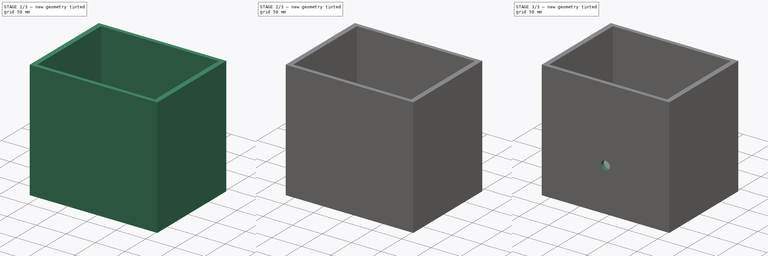
[diagram: build sequence overview — one tinted view per stage of 3, left to right]
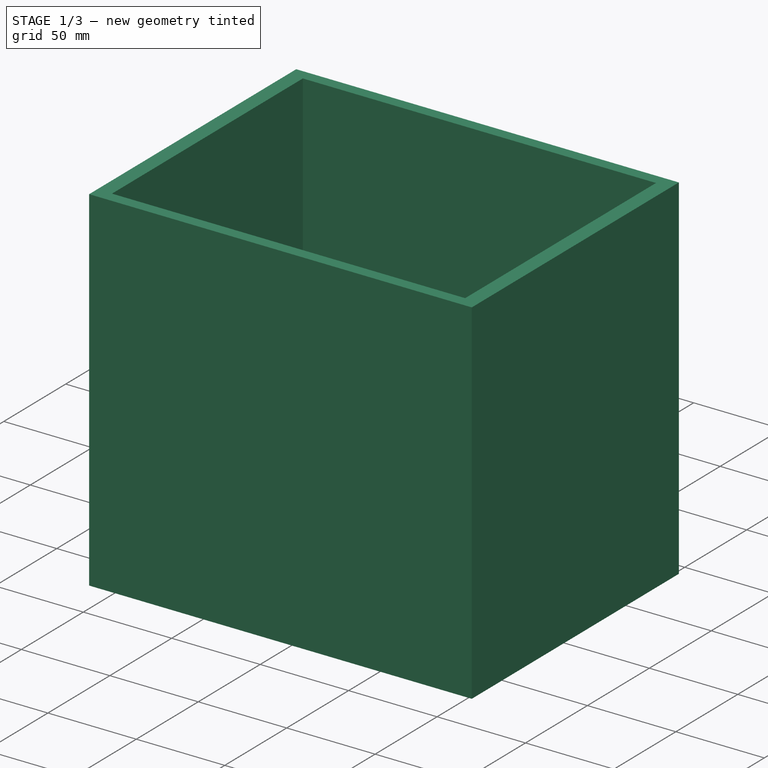
[diagram: stage 1 of 3 — iso view after this stage's code; geometry added in this stage tinted green]
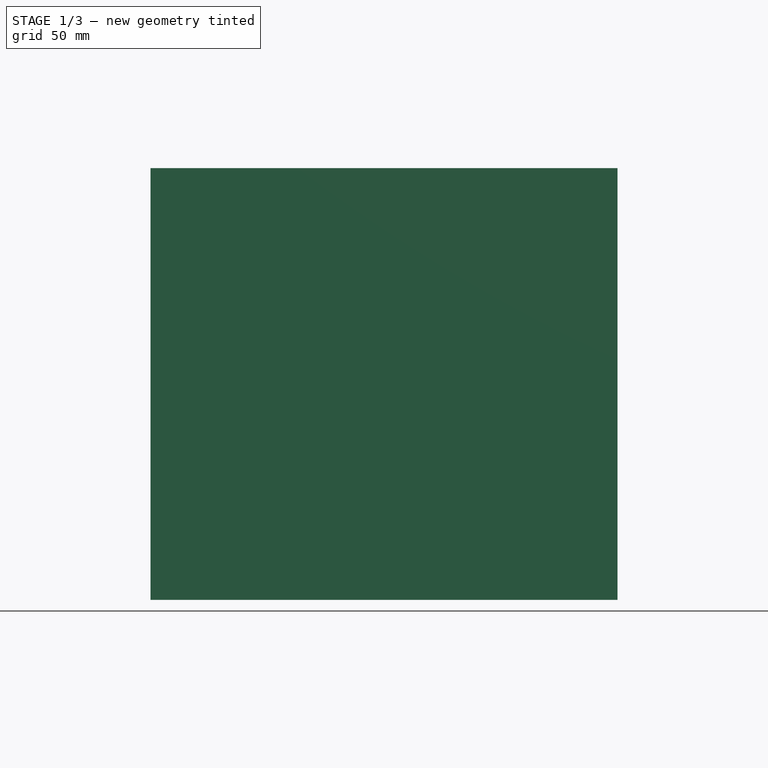
[diagram: stage 1 of 3 — front view after this stage's code; geometry added in this stage tinted green]
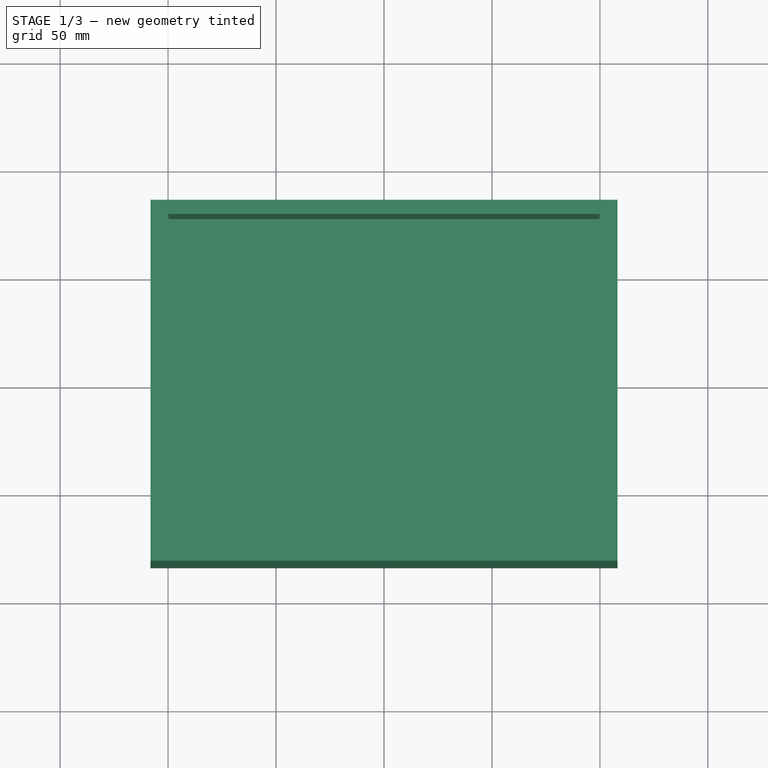
[diagram: stage 1 of 3 — top view after this stage's code; geometry added in this stage tinted green]
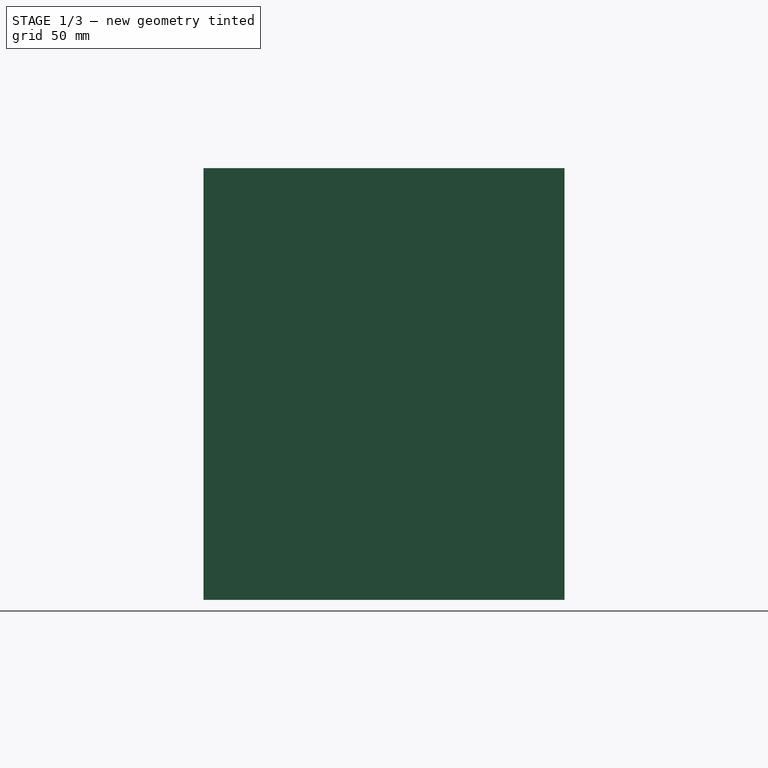
[diagram: stage 1 of 3 — right view after this stage's code; geometry added in this stage tinted green]
FCSTD DOCUMENT  (FreeCAD 0.21R33771 (Git))
Label: big_magnet_box
License: All rights reserved
LicenseURL: https://en.wikipedia.org/wiki/All_rights_reserved
objects: Sketcher::SketchObject×5, PartDesign::Pocket×3, PartDesign::Pad×1, PartDesign::Hole×1, PartDesign::Body×1
note: 16 computed .brp shape members not serialized (recipe doc carries the construction recipe); baked Part::Feature solids carry a one-line shape summary decoded from their .brp

FEATURE [Sketcher::SketchObject] Sketch
  FullyConstrained = true
  MapMode = 5
  Support = -> [XY_Plane]
  sketch-geometry (4):
    g0: LineSegment StartX=-108.16 StartY=83.59 StartZ=0 EndX=108.16 EndY=83.59 EndZ=0
    g1: LineSegment StartX=108.16 StartY=83.59 StartZ=0 EndX=108.16 EndY=-83.59 EndZ=0
    g2: LineSegment StartX=108.16 StartY=-83.59 StartZ=0 EndX=-108.16 EndY=-83.59 EndZ=0
    g3: LineSegment StartX=-108.16 StartY=-83.59 StartZ=0 EndX=-108.16 EndY=83.59 EndZ=0
  constraints (12):
    c: Coincident(g0,g1)
    c: Coincident(g1,g2)
    c: Coincident(g2,g3)
    c: Coincident(g3,g0)
    c: Horizontal(g0)
    c: Horizontal(g2)
    c: Vertical(g1)
    c: Vertical(g3)
    c: DistanceX(g0,g0) = 216.32
    c: DistanceY(g3,g3) = 167.18
    c: Distance(g-1,g0) = 83.59
    c: Distance(g-1,g1) = 108.16
FEATURE [PartDesign::Pad] Pad
  Direction = (0,0,1)
  Length = 200
  Length2 = 10
  Profile = -> Sketch
  ReferenceAxis = -> Sketch [N_Axis]
  Type = 0
FEATURE [Sketcher::SketchObject] Sketch001
  ExternalGeometry = -> [Pad]
  FullyConstrained = true
  MapMode = 5
  Placement = pos=(0,0,200) rot=(0,0,1;0rad)
  Support = -> [Pad]
  sketch-geometry (4):
    g0: LineSegment StartX=-99.84 StartY=77.04 StartZ=0 EndX=99.84 EndY=77.04 EndZ=0
    g1: LineSegment StartX=99.84 StartY=77.04 StartZ=0 EndX=99.84 EndY=-77.04 EndZ=0
    g2: LineSegment StartX=99.84 StartY=-77.04 StartZ=0 EndX=-99.84 EndY=-77.04 EndZ=0
    g3: LineSegment StartX=-99.84 StartY=-77.04 StartZ=0 EndX=-99.84 EndY=77.04 EndZ=0
  constraints (12):
    c: Coincident(g0,g1)
    c: Coincident(g1,g2)
    c: Coincident(g2,g3)
    c: Coincident(g3,g0)
    c: Horizontal(g0)
    c: Horizontal(g2)
    c: Vertical(g1)
    c: Vertical(g3)
    c: DistanceX(g0,g0) = 199.68
    c: DistanceY(g3,g3) = 154.08
    c: Distance(g-1,g0) = 77.04
    c: Distance(g-1,g3) = 99.84
FEATURE [PartDesign::Pocket] Pocket
  BaseFeature = -> Pad
  Direction = (0,0,-1)
  Length = 140
  Length2 = 5
  Profile = -> Sketch001
  ReferenceAxis = -> Sketch001 [N_Axis]
  Type = 0
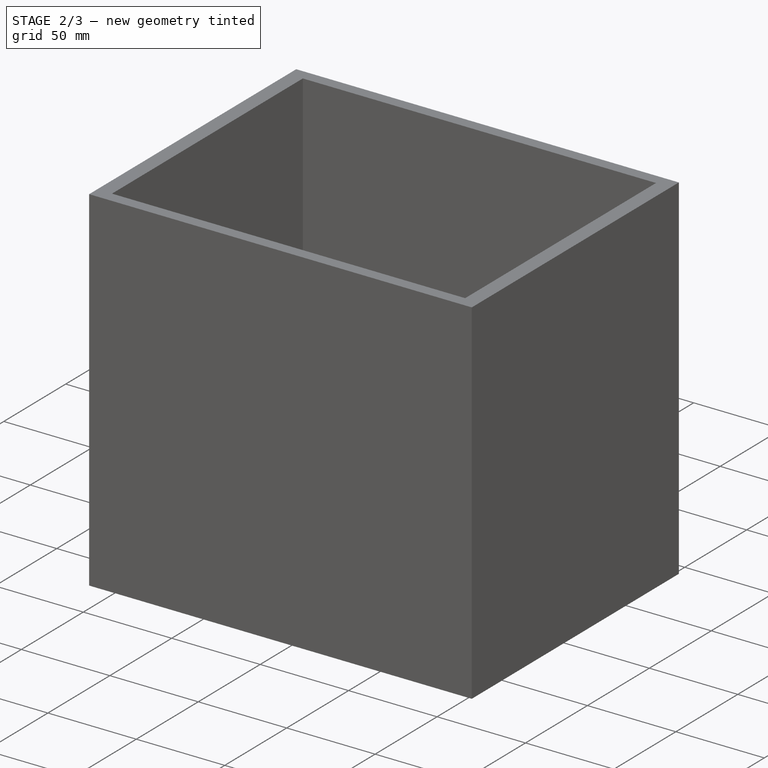
[diagram: stage 2 of 3 — iso view after this stage's code; geometry added in this stage tinted green]
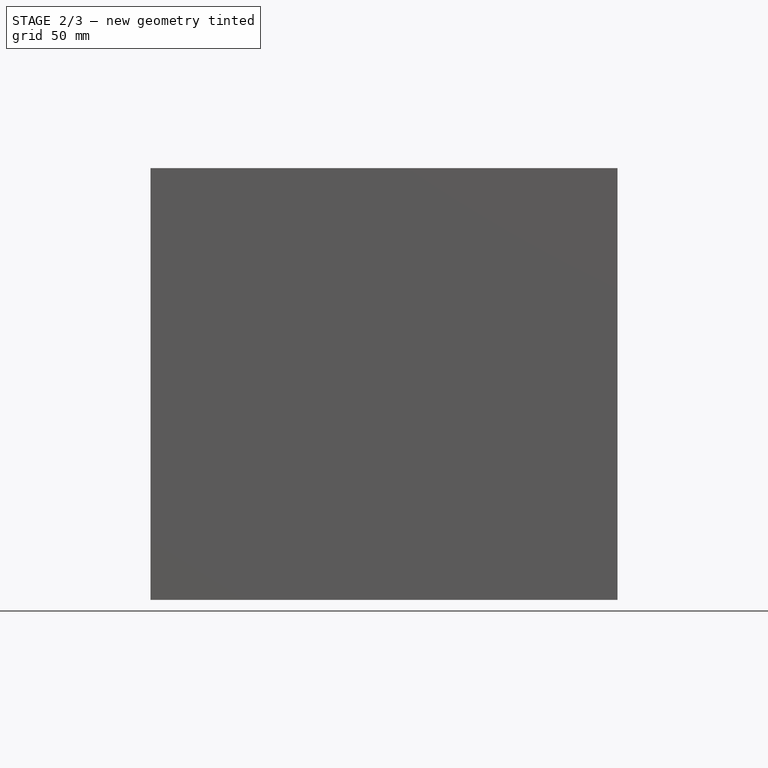
[diagram: stage 2 of 3 — front view after this stage's code; geometry added in this stage tinted green]
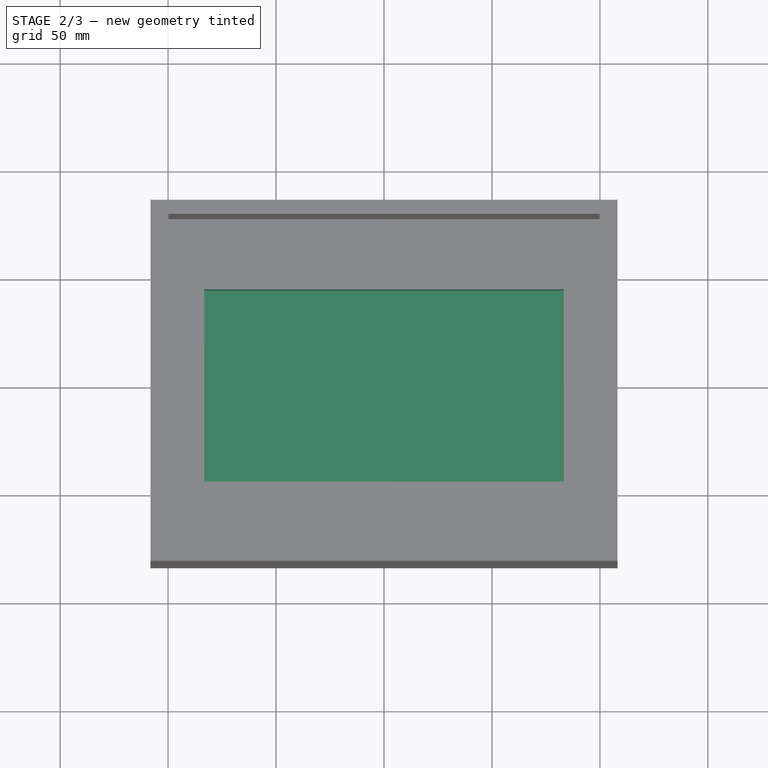
[diagram: stage 2 of 3 — top view after this stage's code; geometry added in this stage tinted green]
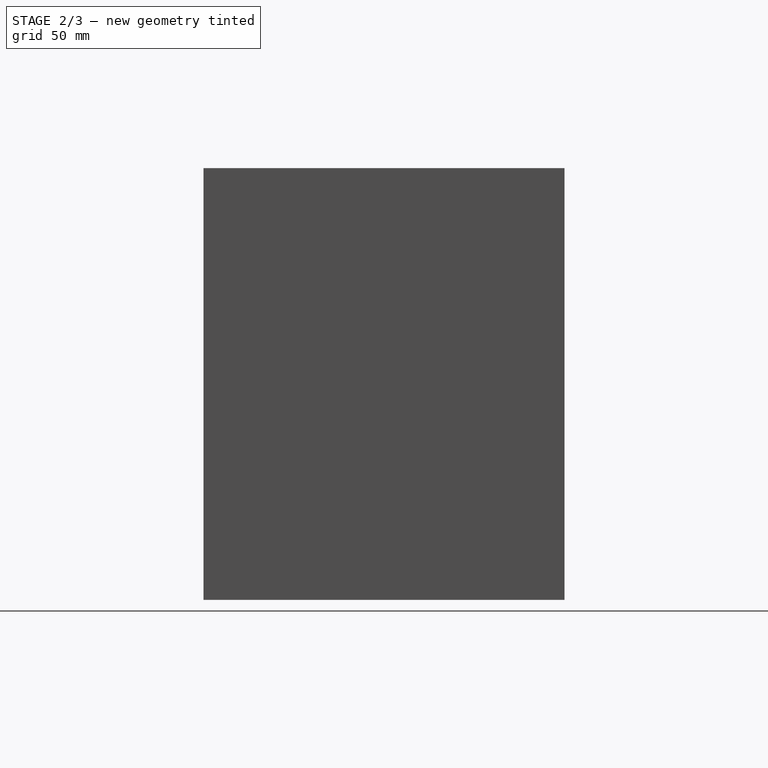
[diagram: stage 2 of 3 — right view after this stage's code; geometry added in this stage tinted green]
FEATURE [Sketcher::SketchObject] Sketch002
  FullyConstrained = true
  MapMode = 5
  Placement = pos=(0,0,60) rot=(0,0,1;0rad)
  Support = -> [Pocket]
  sketch-geometry (4):
    g0: LineSegment StartX=-83.25 StartY=44.5 StartZ=0 EndX=83.25 EndY=44.5 EndZ=0
    g1: LineSegment StartX=83.25 StartY=44.5 StartZ=0 EndX=83.25 EndY=-44.5 EndZ=0
    g2: LineSegment StartX=83.25 StartY=-44.5 StartZ=0 EndX=-83.25 EndY=-44.5 EndZ=0
    g3: LineSegment StartX=-83.25 StartY=-44.5 StartZ=0 EndX=-83.25 EndY=44.5 EndZ=0
  constraints (12):
    c: Coincident(g0,g1)
    c: Coincident(g1,g2)
    c: Coincident(g2,g3)
    c: Coincident(g3,g0)
    c: Horizontal(g0)
    c: Horizontal(g2)
    c: Vertical(g1)
    c: Vertical(g3)
    c: DistanceY(g3,g3) = 89
    c: DistanceX(g0,g0) = 166.5
    c: Distance(g-1,g1) = 83.25
    c: Distance(g-1,g2) = 44.5
FEATURE [PartDesign::Pocket] Pocket001
  BaseFeature = -> Pocket
  Direction = (0,0,-1)
  Length = 30
  Length2 = 5
  Profile = -> Sketch002
  ReferenceAxis = -> Sketch002 [N_Axis]
  Type = 0
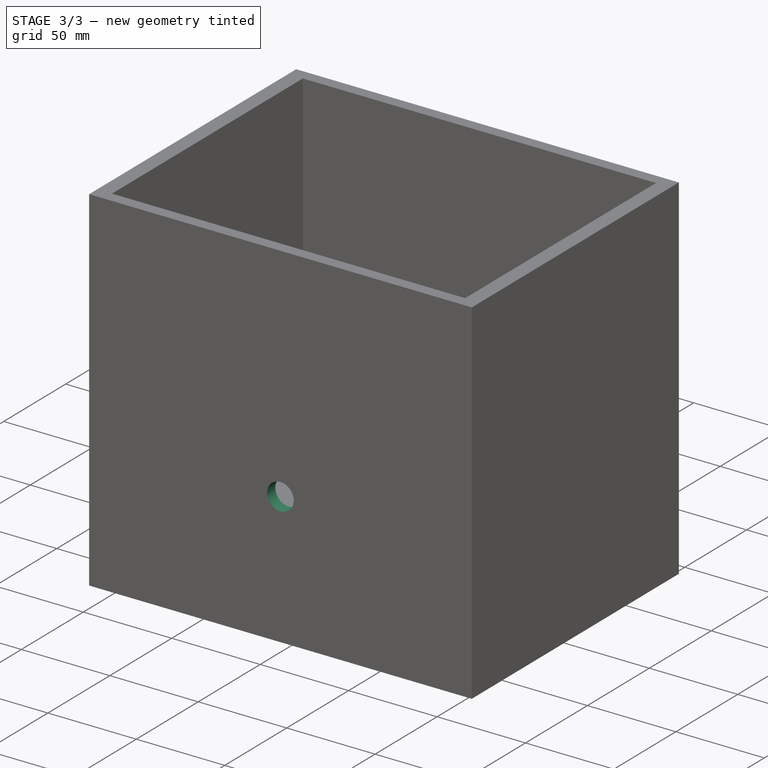
[diagram: stage 3 of 3 — iso view after this stage's code; geometry added in this stage tinted green]
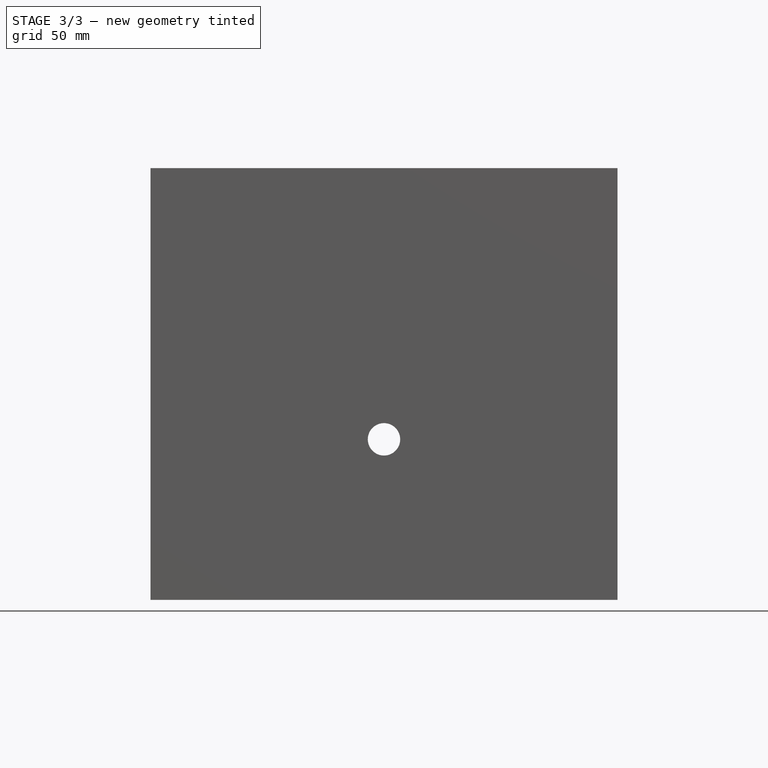
[diagram: stage 3 of 3 — front view after this stage's code; geometry added in this stage tinted green]
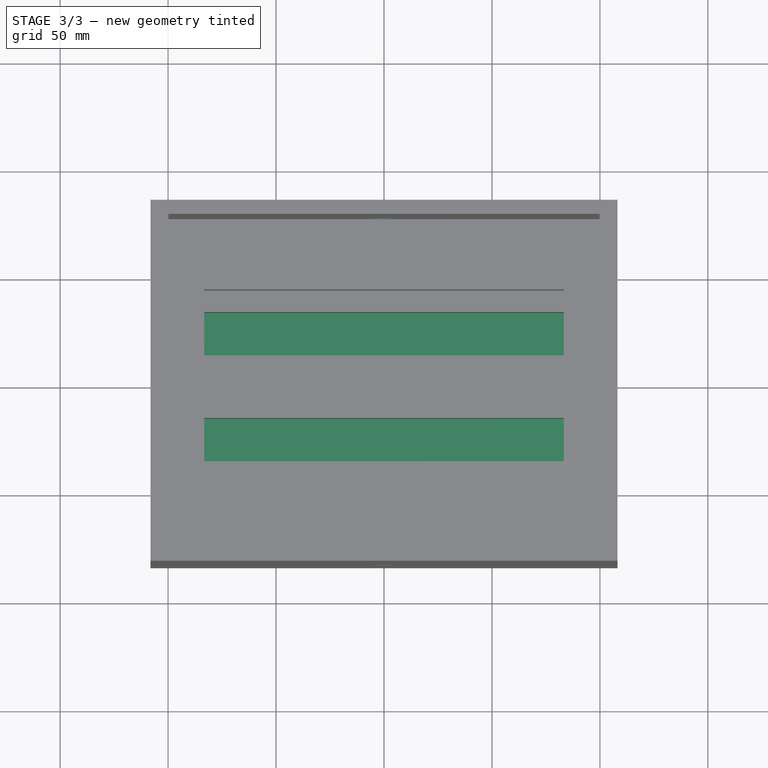
[diagram: stage 3 of 3 — top view after this stage's code; geometry added in this stage tinted green]
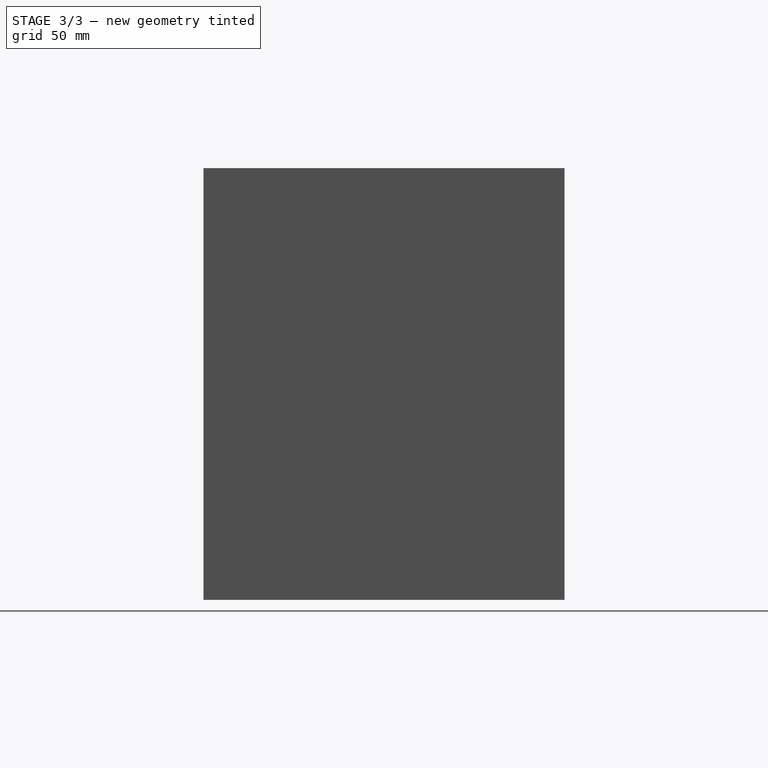
[diagram: stage 3 of 3 — right view after this stage's code; geometry added in this stage tinted green]
FEATURE [Sketcher::SketchObject] Sketch003
  ExternalGeometry = -> [Pocket001]
  FullyConstrained = true
  MapMode = 5
  Placement = pos=(0,0,30) rot=(0,0,1;0rad)
  Support = -> [Pocket001]
  sketch-geometry (8):
    g0: LineSegment StartX=-83.25 StartY=34.5 StartZ=0 EndX=83.25 EndY=34.5 EndZ=0
    g1: LineSegment StartX=83.25 StartY=34.5 StartZ=0 EndX=83.25 EndY=14.5 EndZ=0
    g2: LineSegment StartX=83.25 StartY=14.5 StartZ=0 EndX=-83.25 EndY=14.5 EndZ=0
    g3: LineSegment StartX=-83.25 StartY=14.5 StartZ=0 EndX=-83.25 EndY=34.5 EndZ=0
    g4: LineSegment StartX=-83.25 StartY=-14.5 StartZ=0 EndX=83.25 EndY=-14.5 EndZ=0
    g5: LineSegment StartX=83.25 StartY=-14.5 StartZ=0 EndX=83.25 EndY=-34.5 EndZ=0
    g6: LineSegment StartX=83.25 StartY=-34.5 StartZ=0 EndX=-83.25 EndY=-34.5 EndZ=0
    g7: LineSegment StartX=-83.25 StartY=-34.5 StartZ=0 EndX=-83.25 EndY=-14.5 EndZ=0
  constraints (24):
    c: Coincident(g0,g1)
    c: Coincident(g1,g2)
    c: Coincident(g2,g3)
    c: Coincident(g3,g0)
    c: Horizontal(g0)
    c: Horizontal(g2)
    c: Vertical(g1)
    c: Vertical(g3)
    c: PointOnObject(g0,g-6)
    c: PointOnObject(g1,g-4)
    c: Coincident(g4,g5)
    c: Coincident(g5,g6)
    c: Coincident(g6,g7)
    c: Coincident(g7,g4)
    c: Horizontal(g4)
    c: Horizontal(g6)
    c: Vertical(g5)
    c: Vertical(g7)
    c: PointOnObject(g4,g-6)
    c: PointOnObject(g5,g-4)
    c: DistanceY(g7,g7) = 20
    c: DistanceY(g3,g3) = 20
    c: Distance(g-1,g2) = 14.5
    c: Distance(g-1,g4) = 14.5
FEATURE [PartDesign::Pocket] Pocket002
  BaseFeature = -> Pocket001
  Direction = (0,0,-1)
  Length = 21
  Length2 = 5
  Profile = -> Sketch003
  ReferenceAxis = -> Sketch003 [N_Axis]
  Type = 0
FEATURE [Sketcher::SketchObject] Sketch004
  ExternalGeometry = -> [Pocket002]
  FullyConstrained = true
  MapMode = 5
  Placement = pos=(0,-83.59,0) rot=(1,0,0;1.5708rad)
  Support = -> [Pocket002]
  sketch-geometry (1):
    g0: Circle CenterX=0 CenterY=74.375 CenterZ=0 NormalX=0 NormalY=0 NormalZ=1 AngleXU=0 Radius=7.5
  constraints (3):
    c: PointOnObject(g0,g-2)
    c: Distance(g0,g-3) = 44.375
    c: Diameter(g0) = 15
FEATURE [PartDesign::Hole] Hole
  BaseFeature = -> Pocket002
  CustomThreadClearance = 0
  Depth = 200
  DepthType = 0
  Diameter = 15
  DrillForDepth = false
  DrillPoint = 1
  DrillPointAngle = 118
  HoleCutCountersinkAngle = 90
  HoleCutCustomValues = false
  HoleCutDepth = 0
  HoleCutDiameter = 0
  HoleCutType = 0
  ModelThread = false
  Profile = -> Sketch004
  Tapered = false
  TaperedAngle = 90
  ThreadClass = 0
  ThreadDepth = 200
  ThreadDepthType = 0
  ThreadDirection = 0
  ThreadFit = 0
  ThreadSize = 0
  ThreadType = 0
  Threaded = false
  UseCustomThreadClearance = false
FEATURE [PartDesign::Body] Body
  Group = -> [Sketch,Pad,Sketch001,Pocket,Sketch002,Pocket001,Sketch003,Pocket002,Sketch004,Hole]
  Origin = -> Origin
  Tip = -> Hole
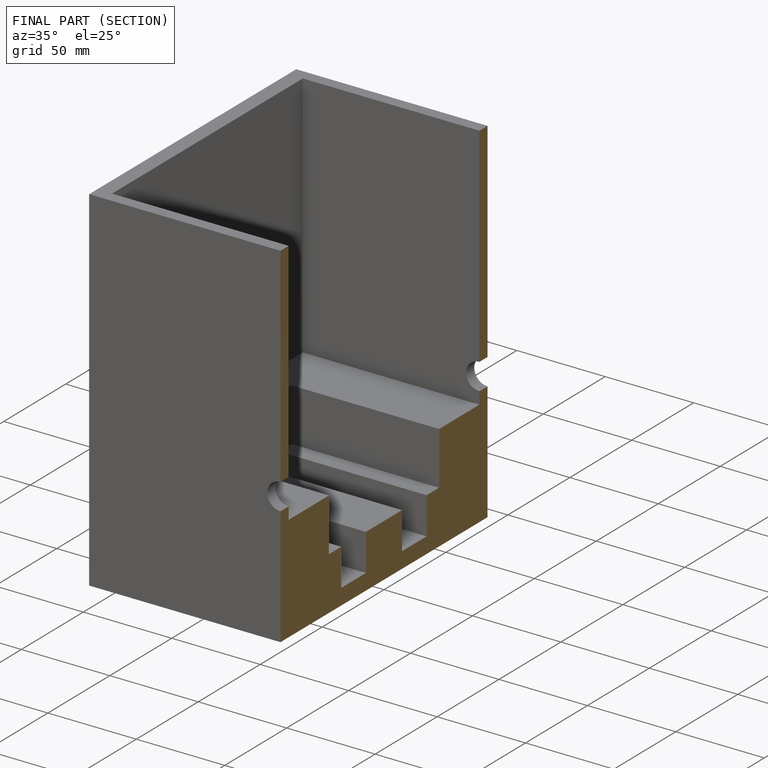
[diagram: finished part — half-section view (interior)]
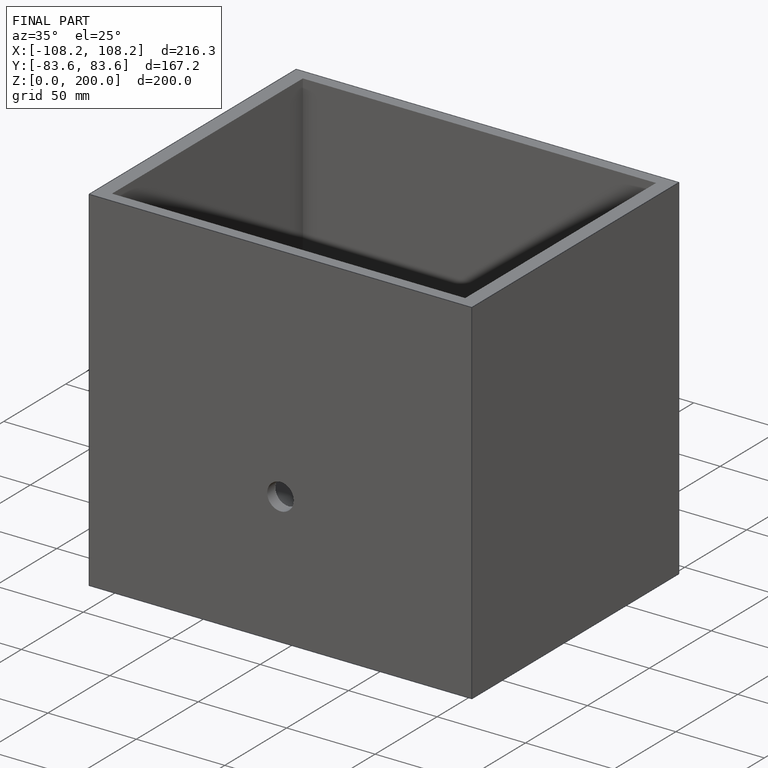
[diagram: finished part — iso view with bounding-box wireframe]
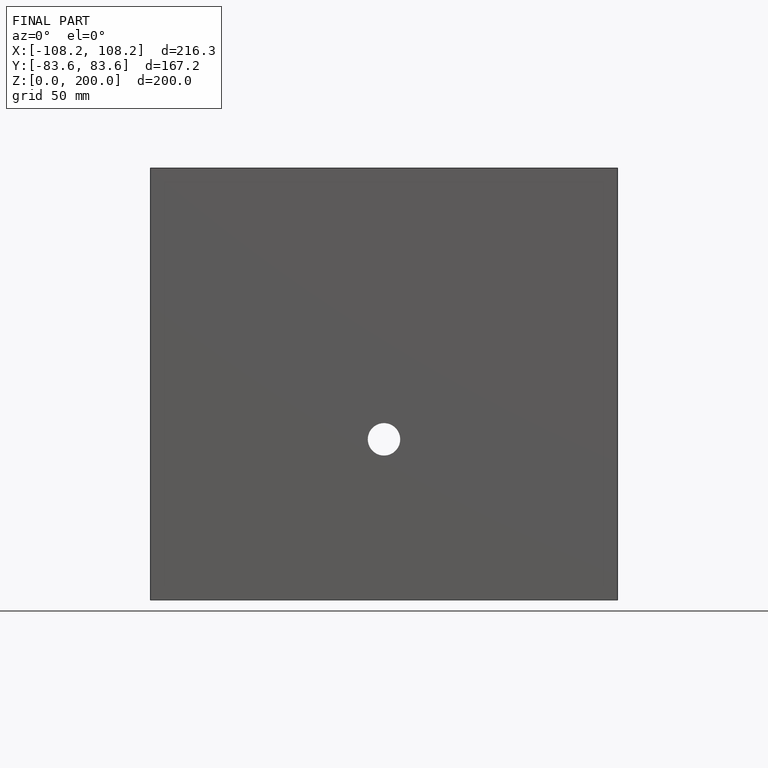
[diagram: finished part — front view with bounding-box wireframe]
